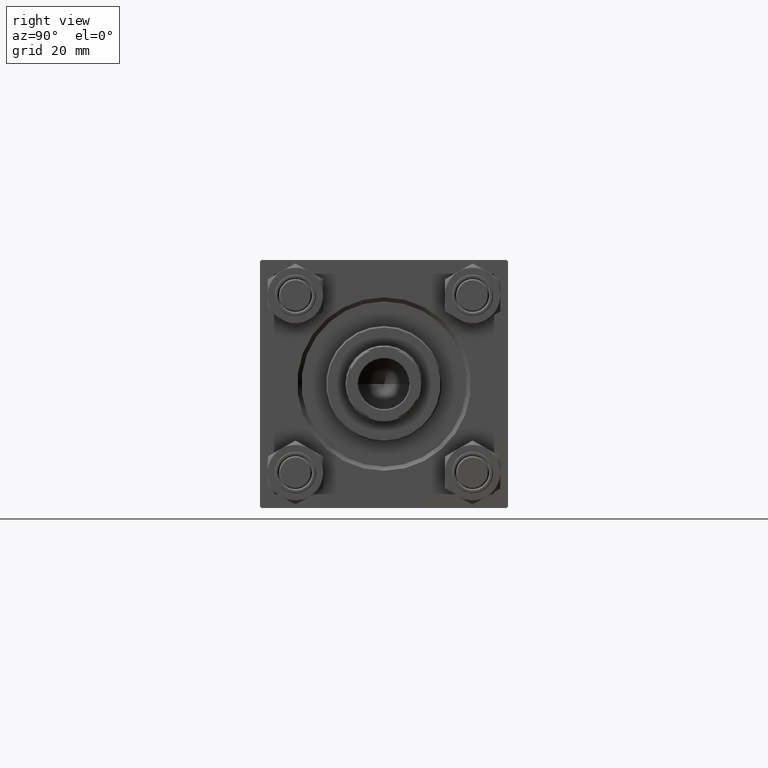
[diagram: clean part render]
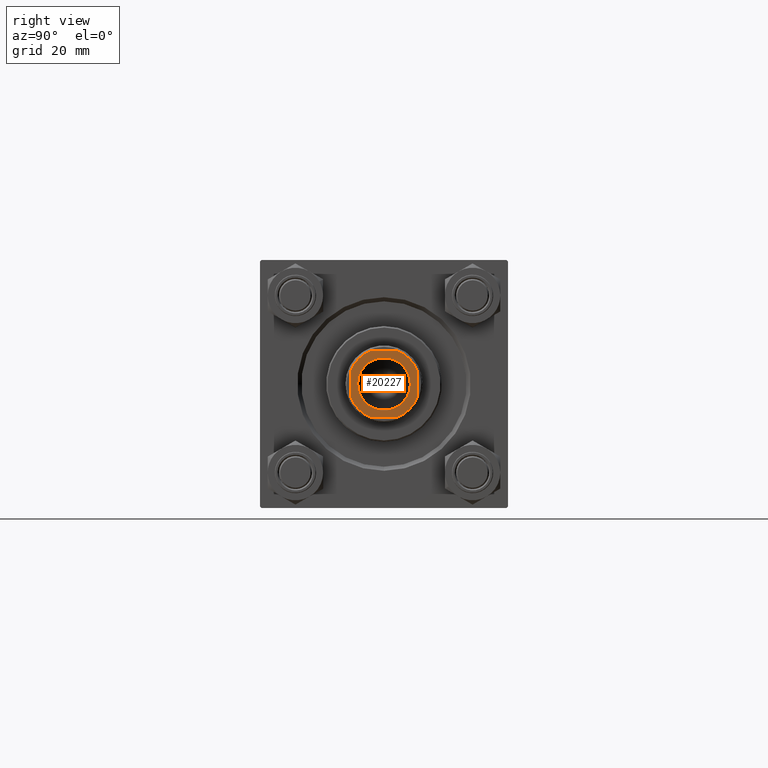
[diagram: same view with one face highlighted and labeled with its STEP entity id]
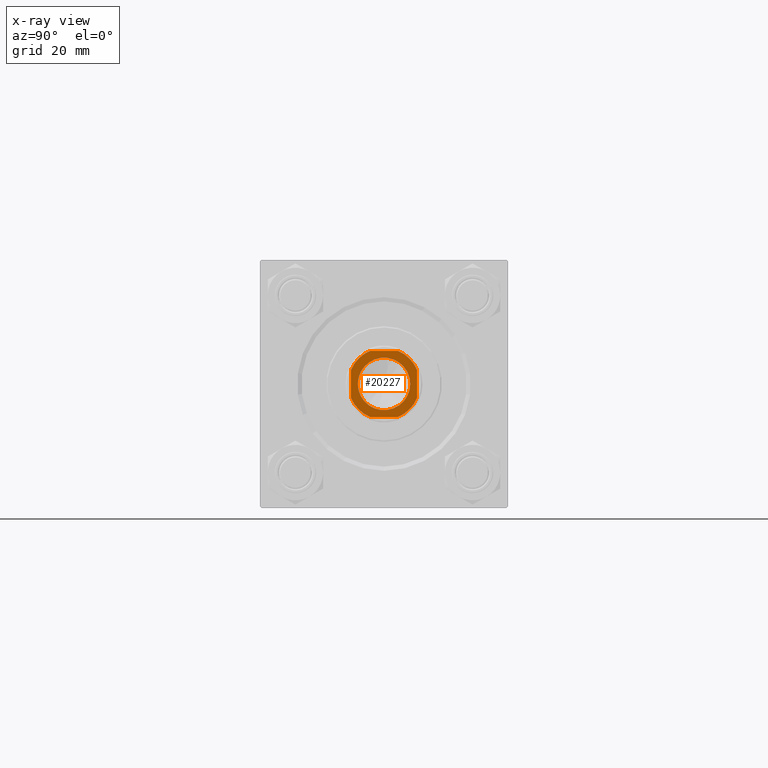
[diagram: x-ray of the same camera — body ghosted, the highlighted face saturated]
A machine part, right view. The second image highlights one B-rep face of the part: STEP entity #20227.
The next image is the same camera in x-ray: the body ghosted, the highlighted face saturated — about 0% of this face is hidden behind the body in this view.
In plain terms, the highlighted planar face has unit normal (1, 0, -0).
Its self-contained STEP definition (entity closure, byte-faithful):
#79 = AXIS2_PLACEMENT_3D ( 'NONE', #17963, #48689, #49190 ) ;
#1739 = ORIENTED_EDGE ( 'NONE', *, *, #21709, .T. ) ;
#2596 = AXIS2_PLACEMENT_3D ( 'NONE', #6933, #21280, #33117 ) ;
#2622 = FACE_OUTER_BOUND ( 'NONE', #32787, .T. ) ;
#3053 = CARTESIAN_POINT ( 'NONE',  ( -12.00000000000000000, -5.000000000000094147, 150.0000000000000000 ) ) ;
#3386 = CIRCLE ( 'NONE', #2596, 12.99999999999999289 ) ;
#3521 = CARTESIAN_POINT ( 'NONE',  ( 0.000000000000000000, 0.000000000000000000, 150.0000000000000000 ) ) ;
#3893 = EDGE_CURVE ( 'NONE', #8484, #30410, #14157, .T. ) ;
#4163 = DIRECTION ( 'NONE',  ( 0.000000000000000000, -0.000000000000000000, -1.000000000000000000 ) ) ;
#4868 = CARTESIAN_POINT ( 'NONE',  ( 4.999999999999889866, 11.99999999999999645, 150.0000000000000000 ) ) ;
#6360 = EDGE_CURVE ( 'NONE', #34339, #41966, #7521, .T. ) ;
#6589 = CARTESIAN_POINT ( 'NONE',  ( -12.00000000000000000, 11.99999999999999645, 150.0000000000000000 ) ) ;
#6933 = CARTESIAN_POINT ( 'NONE',  ( 0.000000000000000000, 0.000000000000000000, 150.0000000000000000 ) ) ;
#7073 = CARTESIAN_POINT ( 'NONE',  ( -12.00000000000000000, 4.999999999999979572, 150.0000000000000000 ) ) ;
#7521 = LINE ( 'NONE', #38235, #48792 ) ;
#8317 = DIRECTION ( 'NONE',  ( 1.000000000000000000, 0.000000000000000000, 0.000000000000000000 ) ) ;
#8357 = CARTESIAN_POINT ( 'NONE',  ( -9.550000000000030909, 1.169537693185725911E-15, 150.0000000000000000 ) ) ;
#8455 = VERTEX_POINT ( 'NONE', #7073 ) ;
#8484 = VERTEX_POINT ( 'NONE', #3053 ) ;
#8879 = DIRECTION ( 'NONE',  ( 1.000000000000000000, 0.000000000000000000, 0.000000000000000000 ) ) ;
#9289 = ORIENTED_EDGE ( 'NONE', *, *, #35305, .T. ) ;
#9331 = AXIS2_PLACEMENT_3D ( 'NONE', #41656, #42394, #37870 ) ;
#9920 = PLANE ( 'NONE',  #79 ) ;
#10124 = CARTESIAN_POINT ( 'NONE',  ( 0.000000000000000000, 0.000000000000000000, 150.0000000000000000 ) ) ;
#10355 = EDGE_CURVE ( 'NONE', #19589, #36373, #16809, .T. ) ;
#10776 = ORIENTED_EDGE ( 'NONE', *, *, #14383, .T. ) ;
#12061 = CIRCLE ( 'NONE', #31354, 13.00000000000004263 ) ;
#12188 = LINE ( 'NONE', #18750, #23087 ) ;
#12982 = ORIENTED_EDGE ( 'NONE', *, *, #39092, .T. ) ;
#14010 = VECTOR ( 'NONE', #41083, 1000.000000000000000 ) ;
#14157 = CIRCLE ( 'NONE', #9331, 13.00000000000003553 ) ;
#14383 = EDGE_CURVE ( 'NONE', #14499, #23642, #12061, .T. ) ;
#14499 = VERTEX_POINT ( 'NONE', #46092 ) ;
#16809 = CIRCLE ( 'NONE', #26426, 9.550000000000030909 ) ;
#17963 = CARTESIAN_POINT ( 'NONE',  ( 0.000000000000000000, 0.000000000000000000, 150.0000000000000000 ) ) ;
#18152 = CARTESIAN_POINT ( 'NONE',  ( -5.000000000000085265, -12.00000000000000355, 150.0000000000000000 ) ) ;
#18750 = CARTESIAN_POINT ( 'NONE',  ( 11.99999999999999645, 11.99999999999999645, 150.0000000000000000 ) ) ;
#18871 = DIRECTION ( 'NONE',  ( 0.000000000000000000, -0.000000000000000000, -1.000000000000000000 ) ) ;
#19073 = ORIENTED_EDGE ( 'NONE', *, *, #20008, .T. ) ;
#19104 = DIRECTION ( 'NONE',  ( -1.000000000000000000, -0.000000000000000000, -0.000000000000000000 ) ) ;
#19503 = DIRECTION ( 'NONE',  ( 1.000000000000000000, 0.000000000000000000, 0.000000000000000000 ) ) ;
#19589 = VERTEX_POINT ( 'NONE', #8357 ) ;
#19744 = AXIS2_PLACEMENT_3D ( 'NONE', #10124, #25468, #8317 ) ;
#20008 = EDGE_CURVE ( 'NONE', #36373, #19589, #32237, .T. ) ;
#20227 = ADVANCED_FACE ( 'NONE', ( #37101, #2622 ), #9920, .T. ) ;
#21280 = DIRECTION ( 'NONE',  ( -0.000000000000000000, 0.000000000000000000, 1.000000000000000000 ) ) ;
#21349 = DIRECTION ( 'NONE',  ( 1.000000000000000000, 0.000000000000000000, 0.000000000000000000 ) ) ;
#21709 = EDGE_CURVE ( 'NONE', #41966, #8455, #3386, .T. ) ;
#21777 = VERTEX_POINT ( 'NONE', #37640 ) ;
#23044 = CARTESIAN_POINT ( 'NONE',  ( 12.00000000000000178, -5.000000000000104805, 150.0000000000000000 ) ) ;
#23087 = VECTOR ( 'NONE', #42661, 1000.000000000000000 ) ;
#23139 = ORIENTED_EDGE ( 'NONE', *, *, #45362, .T. ) ;
#23642 = VERTEX_POINT ( 'NONE', #23044 ) ;
#23979 = CARTESIAN_POINT ( 'NONE',  ( 0.000000000000000000, 0.000000000000000000, 150.0000000000000000 ) ) ;
#25468 = DIRECTION ( 'NONE',  ( -0.000000000000000000, 0.000000000000000000, 1.000000000000000000 ) ) ;
#25712 = LINE ( 'NONE', #6589, #14010 ) ;
#26426 = AXIS2_PLACEMENT_3D ( 'NONE', #3521, #18871, #35220 ) ;
#29476 = ORIENTED_EDGE ( 'NONE', *, *, #3893, .T. ) ;
#30410 = VERTEX_POINT ( 'NONE', #18152 ) ;
#31091 = EDGE_CURVE ( 'NONE', #8455, #8484, #25712, .T. ) ;
#31354 = AXIS2_PLACEMENT_3D ( 'NONE', #23979, #32534, #8879 ) ;
#32237 = CIRCLE ( 'NONE', #48337, 9.550000000000030909 ) ;
#32534 = DIRECTION ( 'NONE',  ( -0.000000000000000000, 0.000000000000000000, 1.000000000000000000 ) ) ;
#32787 = EDGE_LOOP ( 'NONE', ( #12982, #9289, #42450, #1739, #44266, #29476, #23139, #10776 ) ) ;
#33117 = DIRECTION ( 'NONE',  ( 1.000000000000000000, 0.000000000000000000, 0.000000000000000000 ) ) ;
#34339 = VERTEX_POINT ( 'NONE', #4868 ) ;
#35058 = CIRCLE ( 'NONE', #19744, 12.99999999999995381 ) ;
#35220 = DIRECTION ( 'NONE',  ( 1.000000000000000000, 0.000000000000000000, 0.000000000000000000 ) ) ;
#35305 = EDGE_CURVE ( 'NONE', #21777, #34339, #35058, .T. ) ;
#36218 = LINE ( 'NONE', #44281, #40059 ) ;
#36373 = VERTEX_POINT ( 'NONE', #48085 ) ;
#37101 = FACE_BOUND ( 'NONE', #42201, .T. ) ;
#37640 = CARTESIAN_POINT ( 'NONE',  ( 11.99999999999999822, 4.999999999999885425, 150.0000000000000000 ) ) ;
#37870 = DIRECTION ( 'NONE',  ( 1.000000000000000000, 0.000000000000000000, 0.000000000000000000 ) ) ;
#38235 = CARTESIAN_POINT ( 'NONE',  ( -12.00000000000000000, 11.99999999999999645, 150.0000000000000000 ) ) ;
#38647 = CARTESIAN_POINT ( 'NONE',  ( 0.000000000000000000, 0.000000000000000000, 150.0000000000000000 ) ) ;
#39092 = EDGE_CURVE ( 'NONE', #23642, #21777, #12188, .T. ) ;
#40059 = VECTOR ( 'NONE', #21349, 1000.000000000000000 ) ;
#41083 = DIRECTION ( 'NONE',  ( 7.228014483236695816E-17, -1.000000000000000000, 0.000000000000000000 ) ) ;
#41656 = CARTESIAN_POINT ( 'NONE',  ( 0.000000000000000000, 0.000000000000000000, 150.0000000000000000 ) ) ;
#41966 = VERTEX_POINT ( 'NONE', #48014 ) ;
#42201 = EDGE_LOOP ( 'NONE', ( #19073, #48988 ) ) ;
#42394 = DIRECTION ( 'NONE',  ( -0.000000000000000000, 0.000000000000000000, 1.000000000000000000 ) ) ;
#42450 = ORIENTED_EDGE ( 'NONE', *, *, #6360, .T. ) ;
#42661 = DIRECTION ( 'NONE',  ( -2.891205793294678326E-16, 1.000000000000000000, -0.000000000000000000 ) ) ;
#44266 = ORIENTED_EDGE ( 'NONE', *, *, #31091, .T. ) ;
#44281 = CARTESIAN_POINT ( 'NONE',  ( -11.99999999999999822, -12.00000000000000355, 150.0000000000000000 ) ) ;
#45362 = EDGE_CURVE ( 'NONE', #30410, #14499, #36218, .T. ) ;
#46092 = CARTESIAN_POINT ( 'NONE',  ( 5.000000000000101252, -12.00000000000000355, 150.0000000000000000 ) ) ;
#48014 = CARTESIAN_POINT ( 'NONE',  ( -4.999999999999987566, 11.99999999999999645, 150.0000000000000000 ) ) ;
#48085 = CARTESIAN_POINT ( 'NONE',  ( 9.550000000000030909, 0.000000000000000000, 150.0000000000000000 ) ) ;
#48337 = AXIS2_PLACEMENT_3D ( 'NONE', #38647, #4163, #19503 ) ;
#48689 = DIRECTION ( 'NONE',  ( -0.000000000000000000, 0.000000000000000000, 1.000000000000000000 ) ) ;
#48792 = VECTOR ( 'NONE', #19104, 1000.000000000000000 ) ;
#48988 = ORIENTED_EDGE ( 'NONE', *, *, #10355, .T. ) ;
#49190 = DIRECTION ( 'NONE',  ( 1.000000000000000000, 0.000000000000000000, 0.000000000000000000 ) ) ;